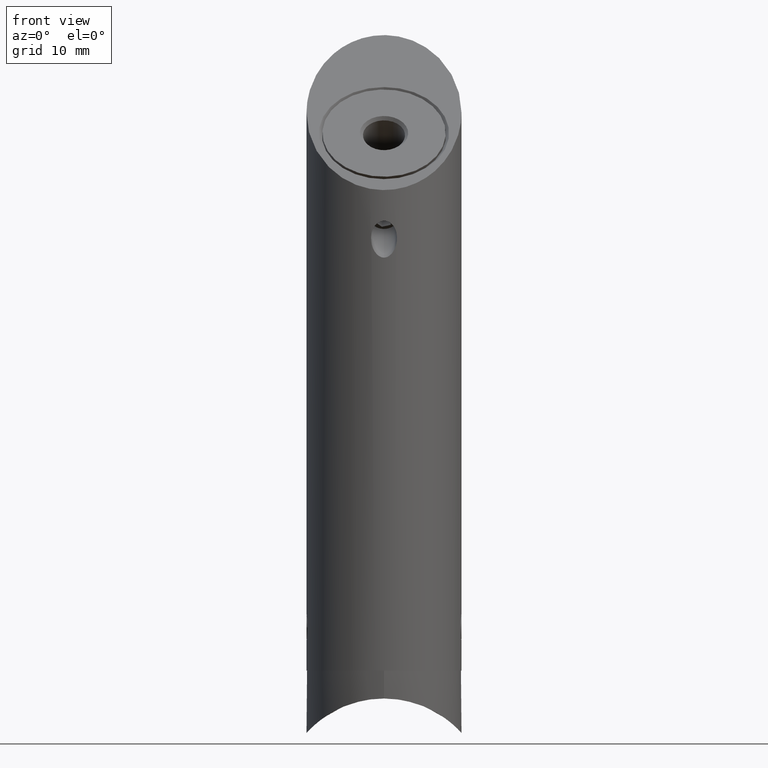
[diagram: clean part render]
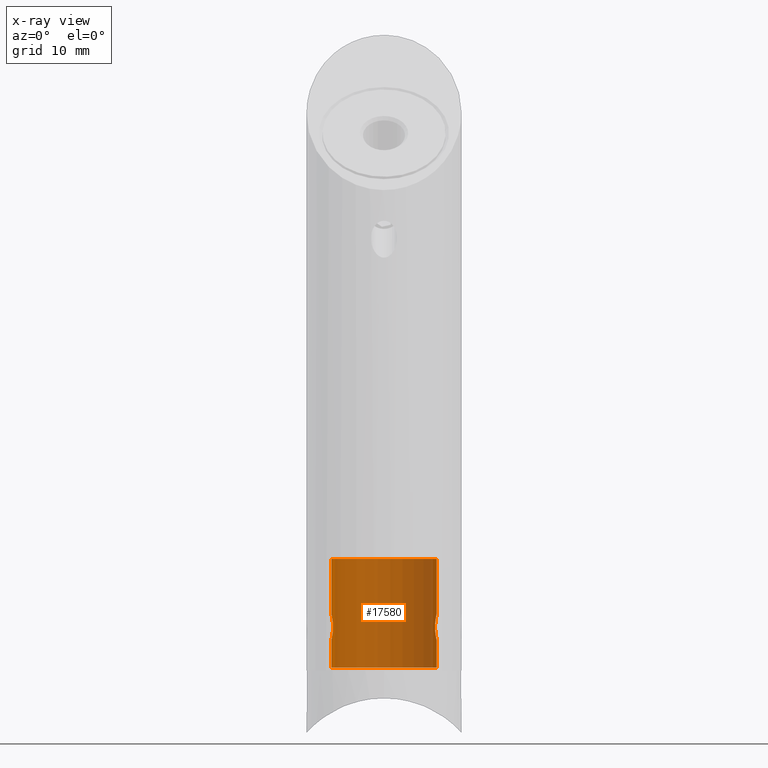
[diagram: x-ray — body ghosted, one internal face saturated and labeled with its STEP entity id]
A machine part, front view, then the same camera in x-ray: the body is ghosted and one INTERNAL B-rep face — a face not visible from any outside direction — is saturated and labeled: STEP entity #17580.
In plain terms, the highlighted cylindrical surface (partial cylindrical patch) has radius 8.5 mm, axis along (-0, -0, -1).
Its self-contained STEP definition (entity closure, byte-faithful):
#156 = CARTESIAN_POINT ( 'NONE',  ( 8.240041956358668400, 2.086259780683787000, 7.276479575319447300 ) ) ;
#565 = VECTOR ( 'NONE', #11245, 1000.000000000000000 ) ;
#809 = CARTESIAN_POINT ( 'NONE',  ( -8.500000000000000000, -1.837029856319032800E-021, 4.900000000000008300 ) ) ;
#1283 = CARTESIAN_POINT ( 'NONE',  ( 8.403572838986606900, 1.281834101084672600, 8.669001185913233000 ) ) ;
#2109 = CARTESIAN_POINT ( 'NONE',  ( -8.499999999999998200, 0.1393330656175417500, 9.099999999999992500 ) ) ;
#2218 = CARTESIAN_POINT ( 'NONE',  ( -8.449583987284246000, 0.9331761633784658700, 8.886295995850353800 ) ) ;
#2278 = CARTESIAN_POINT ( 'NONE',  ( -8.263519282018927800, 1.991770577951817300, 7.679364520728538100 ) ) ;
#2698 = ORIENTED_EDGE ( 'NONE', *, *, #16236, .T. ) ;
#3457 = ORIENTED_EDGE ( 'NONE', *, *, #9708, .T. ) ;
#3474 = CARTESIAN_POINT ( 'NONE',  ( -8.300385196950253800, 1.834450713489369100, 8.058080965075625100 ) ) ;
#3595 = CARTESIAN_POINT ( 'NONE',  ( -8.449736745580985100, 0.9317543119544197100, 5.113025193495184700 ) ) ;
#3656 = CARTESIAN_POINT ( 'NONE',  ( -8.435078417592752200, 1.054792497090245600, 5.178990277520340700 ) ) ;
#3669 = B_SPLINE_CURVE_WITH_KNOTS ( 'NONE', 3,
 ( #16963, #2109, #17092, #11638, #13157, #2218, #11693, #4880, #10453, #13221, #3474, #2278, #7562, #17274, #11806, #12979, #8921, #4818, #5002, #11748, #14389, #6252, #10397, #3656, #3595, #6310, #14505, #14274, #6193, #809 ),
 .UNSPECIFIED., .F., .F.,
 ( 4, 2, 2, 2, 2, 2, 2, 2, 2, 2, 2, 2, 2, 2, 4 ),
 ( 0.0000000000000000000, 0.0004119475621499937300, 0.0008238951242999874600, 0.001235842686449981100, 0.001647790248599974900, 0.002471685372899964800, 0.002883632935049958600, 0.003295580497199952400, 0.003707528059349946300, 0.004119475621499939200, 0.004943370745799927800, 0.005355318307949921200, 0.005767265870099914600, 0.006179213432249908000, 0.006591160994399902300 ),
 .UNSPECIFIED. ) ;
#3911 = DIRECTION ( 'NONE',  ( -0.0000000000000000000, -0.0000000000000000000, -1.000000000000000000 ) ) ;
#4009 = CYLINDRICAL_SURFACE ( 'NONE', #6789, 8.500000000000000000 ) ;
#4015 = CARTESIAN_POINT ( 'NONE',  ( 8.403631641869427700, 1.281486634270026600, 5.330693633718578200 ) ) ;
#4062 = CARTESIAN_POINT ( 'NONE',  ( 8.473790969397686700, 0.6790831444103765400, 5.008072185334882000 ) ) ;
#4120 = CARTESIAN_POINT ( 'NONE',  ( 8.496570775042242100, 0.2767940339338717000, 9.086241596614694800 ) ) ;
#4369 = VERTEX_POINT ( 'NONE', #13962 ) ;
#4818 = CARTESIAN_POINT ( 'NONE',  ( -8.253499000408766100, 2.032369446065715100, 6.453744324728682500 ) ) ;
#4880 = CARTESIAN_POINT ( 'NONE',  ( -8.403631641869427700, 1.281486634270026000, 8.669306366281423600 ) ) ;
#4949 = B_SPLINE_CURVE_WITH_KNOTS ( 'NONE', 3,
 ( #7931, #7986, #6733, #17645, #4062, #12174, #16191, #4015, #12282, #9396, #8042, #13630, #9564, #12118, #13690, #8153, #156, #8099, #14873, #14980, #10811, #9620, #1283, #16353, #13516, #5547, #8209, #4120, #10702, #5376 ),
 .UNSPECIFIED., .F., .F.,
 ( 4, 2, 2, 2, 2, 2, 2, 2, 2, 2, 2, 2, 2, 2, 4 ),
 ( 0.0000000000000000000, 0.0004119475621499946500, 0.0008238951242999893000, 0.001235842686449984100, 0.001647790248599978600, 0.002471685372899969500, 0.002883632935049963400, 0.003295580497199957200, 0.003707528059349951500, 0.004119475621499945300, 0.004943370745799933000, 0.005355318307949925500, 0.005767265870099918000, 0.006179213432249910600, 0.006591160994399903100 ),
 .UNSPECIFIED. ) ;
#5002 = CARTESIAN_POINT ( 'NONE',  ( -8.263341995424690700, 1.992518655463279900, 6.322567790190655400 ) ) ;
#5014 = CARTESIAN_POINT ( 'NONE',  ( 8.500000000000000000, 1.040949779275250100E-015, 18.00000000000000000 ) ) ;
#5247 = DIRECTION ( 'NONE',  ( -0.0000000000000000000, -0.0000000000000000000, -1.000000000000000000 ) ) ;
#5376 = CARTESIAN_POINT ( 'NONE',  ( 8.500000000000000000, 1.040947942237731000E-015, 9.099999999999992500 ) ) ;
#5547 = CARTESIAN_POINT ( 'NONE',  ( 8.473857099447313200, 0.6782057398855031400, 8.992204053960311000 ) ) ;
#5598 = CIRCLE ( 'NONE', #15610, 8.500000000000000000 ) ;
#5697 = ORIENTED_EDGE ( 'NONE', *, *, #14802, .F. ) ;
#5913 = DIRECTION ( 'NONE',  ( -1.000000000000000000, 0.0000000000000000000, 0.0000000000000000000 ) ) ;
#6193 = CARTESIAN_POINT ( 'NONE',  ( -8.500000000000001800, 0.1373717510630620700, 4.900000000000008300 ) ) ;
#6252 = CARTESIAN_POINT ( 'NONE',  ( -8.386606878835248600, 1.387297218133260300, 5.417489483887736800 ) ) ;
#6310 = CARTESIAN_POINT ( 'NONE',  ( -8.473857099447313200, 0.6782057398855024800, 5.007795946039690800 ) ) ;
#6524 = CARTESIAN_POINT ( 'NONE',  ( 8.500000000000000000, 1.040949779275250100E-015, 18.00000000000000000 ) ) ;
#6580 = CARTESIAN_POINT ( 'NONE',  ( -8.500000000000000000, 0.0000000000000000000, 0.5000000000000247600 ) ) ;
#6733 = CARTESIAN_POINT ( 'NONE',  ( 8.496578732000987300, 0.2762321638569488200, 4.913728576234910300 ) ) ;
#6789 = AXIS2_PLACEMENT_3D ( 'NONE', #13322, #7961, #9136 ) ;
#7289 = VECTOR ( 'NONE', #3911, 1000.000000000000000 ) ;
#7363 = EDGE_CURVE ( 'NONE', #4369, #16988, #8523, .T. ) ;
#7562 = CARTESIAN_POINT ( 'NONE',  ( -8.253497551418561800, 2.032376959208348500, 7.546428584836038000 ) ) ;
#7595 = VERTEX_POINT ( 'NONE', #8919 ) ;
#7760 = CARTESIAN_POINT ( 'NONE',  ( -8.500000000000000000, 0.0000000000000000000, 18.00000000000000000 ) ) ;
#7918 = LINE ( 'NONE', #11658, #12390 ) ;
#7931 = CARTESIAN_POINT ( 'NONE',  ( 8.500000000000000000, 0.0000000000000000000, 4.900000000000008300 ) ) ;
#7961 = DIRECTION ( 'NONE',  ( -0.0000000000000000000, -0.0000000000000000000, -1.000000000000000000 ) ) ;
#7986 = CARTESIAN_POINT ( 'NONE',  ( 8.500000000000001800, 0.1393330656175419100, 4.900000000000009200 ) ) ;
#8042 = CARTESIAN_POINT ( 'NONE',  ( 8.300385196950253800, 1.834450713489368800, 5.941919034924371300 ) ) ;
#8090 = CARTESIAN_POINT ( 'NONE',  ( -8.500000000000000000, -1.837029856319032800E-021, 4.900000000000008300 ) ) ;
#8099 = CARTESIAN_POINT ( 'NONE',  ( 8.253499000408767800, 2.032369446065716000, 7.546255675271315700 ) ) ;
#8153 = CARTESIAN_POINT ( 'NONE',  ( 8.236489519390671500, 2.100057237429267900, 7.136693656963869300 ) ) ;
#8209 = CARTESIAN_POINT ( 'NONE',  ( 8.483445392171788100, 0.5472514509460862900, 9.032125681670363400 ) ) ;
#8523 = LINE ( 'NONE', #5014, #11526 ) ;
#8562 = VERTEX_POINT ( 'NONE', #6580 ) ;
#8895 = FACE_OUTER_BOUND ( 'NONE', #9694, .T. ) ;
#8919 = CARTESIAN_POINT ( 'NONE',  ( 8.500000000000000000, 1.040949779275250100E-015, 18.00000000000000000 ) ) ;
#8921 = CARTESIAN_POINT ( 'NONE',  ( -8.240041956358670200, 2.086259780683787500, 6.723520424680552700 ) ) ;
#9136 = DIRECTION ( 'NONE',  ( -1.000000000000000000, 0.0000000000000000000, 0.0000000000000000000 ) ) ;
#9396 = CARTESIAN_POINT ( 'NONE',  ( 8.334981901263866200, 1.678225819861512100, 5.708493137165045400 ) ) ;
#9564 = CARTESIAN_POINT ( 'NONE',  ( 8.253497551418560000, 2.032376959208348000, 6.453571415163960300 ) ) ;
#9620 = CARTESIAN_POINT ( 'NONE',  ( 8.386606878835248600, 1.387297218133261500, 8.582510516112261500 ) ) ;
#9694 = EDGE_LOOP ( 'NONE', ( #16357, #5697, #10243, #12936, #2698, #3457, #15592, #12078 ) ) ;
#9708 = EDGE_CURVE ( 'NONE', #8562, #16988, #5598, .T. ) ;
#9854 = CARTESIAN_POINT ( 'NONE',  ( -8.500000000000000000, 0.0000000000000000000, 18.00000000000000000 ) ) ;
#9863 = EDGE_CURVE ( 'NONE', #9968, #12569, #7918, .T. ) ;
#9928 = CARTESIAN_POINT ( 'NONE',  ( 8.500000000000000000, 1.040949779275250100E-015, 0.5000000000000247600 ) ) ;
#9968 = VERTEX_POINT ( 'NONE', #7760 ) ;
#10243 = ORIENTED_EDGE ( 'NONE', *, *, #9863, .T. ) ;
#10343 = EDGE_CURVE ( 'NONE', #12569, #14139, #3669, .T. ) ;
#10397 = CARTESIAN_POINT ( 'NONE',  ( -8.403572838986605100, 1.281834101084671200, 5.330998814086767000 ) ) ;
#10453 = CARTESIAN_POINT ( 'NONE',  ( -8.386324222624240900, 1.388941083069197700, 8.580965096883051800 ) ) ;
#10702 = CARTESIAN_POINT ( 'NONE',  ( 8.500000000000001800, 0.1373717510630634900, 9.099999999999994300 ) ) ;
#10811 = CARTESIAN_POINT ( 'NONE',  ( 8.334818774999872600, 1.679246865168308800, 8.290682914587154800 ) ) ;
#11245 = DIRECTION ( 'NONE',  ( -0.0000000000000000000, -0.0000000000000000000, -1.000000000000000000 ) ) ;
#11351 = LINE ( 'NONE', #6524, #7289 ) ;
#11526 = VECTOR ( 'NONE', #5247, 1000.000000000000000 ) ;
#11568 = DIRECTION ( 'NONE',  ( 0.0000000000000000000, 0.0000000000000000000, -1.000000000000000000 ) ) ;
#11587 = AXIS2_PLACEMENT_3D ( 'NONE', #15569, #11568, #5913 ) ;
#11638 = CARTESIAN_POINT ( 'NONE',  ( -8.483554698900585200, 0.5453934618258577900, 9.032579305652179300 ) ) ;
#11658 = CARTESIAN_POINT ( 'NONE',  ( -8.500000000000000000, 0.0000000000000000000, 18.00000000000000000 ) ) ;
#11693 = CARTESIAN_POINT ( 'NONE',  ( -8.435233262503018600, 1.053599816440959000, 8.821735207190107200 ) ) ;
#11748 = CARTESIAN_POINT ( 'NONE',  ( -8.300533451494139600, 1.833834922641862700, 5.940174806147402000 ) ) ;
#11806 = CARTESIAN_POINT ( 'NONE',  ( -8.236518799466431100, 2.099942396721279800, 7.138446692938804200 ) ) ;
#11888 = CARTESIAN_POINT ( 'NONE',  ( 8.500000000000000000, 1.040947942237731000E-015, 9.099999999999992500 ) ) ;
#12062 = CARTESIAN_POINT ( 'NONE',  ( -8.500000000000000000, 0.0000000000000000000, 9.099999999999990800 ) ) ;
#12078 = ORIENTED_EDGE ( 'NONE', *, *, #12605, .T. ) ;
#12118 = CARTESIAN_POINT ( 'NONE',  ( 8.239982070903455000, 2.086497880847899100, 6.724923836248732900 ) ) ;
#12174 = CARTESIAN_POINT ( 'NONE',  ( 8.449583987284246000, 0.9331761633784674300, 5.113704004149645300 ) ) ;
#12282 = CARTESIAN_POINT ( 'NONE',  ( 8.386324222624244500, 1.388941083069197100, 5.419034903116946500 ) ) ;
#12390 = VECTOR ( 'NONE', #16985, 1000.000000000000000 ) ;
#12569 = VERTEX_POINT ( 'NONE', #12062 ) ;
#12605 = EDGE_CURVE ( 'NONE', #4369, #16004, #4949, .T. ) ;
#12936 = ORIENTED_EDGE ( 'NONE', *, *, #10343, .T. ) ;
#12979 = CARTESIAN_POINT ( 'NONE',  ( -8.236489519390673300, 2.100057237429267400, 6.863306343036128100 ) ) ;
#13157 = CARTESIAN_POINT ( 'NONE',  ( -8.473790969397686700, 0.6790831444103755400, 8.991927814665116300 ) ) ;
#13221 = CARTESIAN_POINT ( 'NONE',  ( -8.334981901263866200, 1.678225819861513200, 8.291506862834952000 ) ) ;
#13322 = CARTESIAN_POINT ( 'NONE',  ( 0.0000000000000000000, 0.0000000000000000000, 18.00000000000000000 ) ) ;
#13516 = CARTESIAN_POINT ( 'NONE',  ( 8.449736745580988600, 0.9317543119544214900, 8.886974806504817100 ) ) ;
#13630 = CARTESIAN_POINT ( 'NONE',  ( 8.263519282018929600, 1.991770577951816900, 6.320635479271462700 ) ) ;
#13690 = CARTESIAN_POINT ( 'NONE',  ( 8.236518799466431100, 2.099942396721279800, 6.861553307061195800 ) ) ;
#13962 = CARTESIAN_POINT ( 'NONE',  ( 8.500000000000000000, 0.0000000000000000000, 4.900000000000008300 ) ) ;
#14139 = VERTEX_POINT ( 'NONE', #8090 ) ;
#14274 = CARTESIAN_POINT ( 'NONE',  ( -8.496570775042238600, 0.2767940339338708600, 4.913758403385304300 ) ) ;
#14389 = CARTESIAN_POINT ( 'NONE',  ( -8.334818774999872600, 1.679246865168308300, 5.709317085412845200 ) ) ;
#14505 = CARTESIAN_POINT ( 'NONE',  ( -8.483445392171786300, 0.5472514509460847400, 4.967874318329639200 ) ) ;
#14731 = EDGE_CURVE ( 'NONE', #7595, #16004, #11351, .T. ) ;
#14802 = EDGE_CURVE ( 'NONE', #9968, #7595, #16346, .T. ) ;
#14873 = CARTESIAN_POINT ( 'NONE',  ( 8.263341995424690700, 1.992518655463280300, 7.677432209809341900 ) ) ;
#14980 = CARTESIAN_POINT ( 'NONE',  ( 8.300533451494141300, 1.833834922641863500, 8.059825193852599800 ) ) ;
#14981 = LINE ( 'NONE', #9854, #565 ) ;
#15569 = CARTESIAN_POINT ( 'NONE',  ( 0.0000000000000000000, 0.0000000000000000000, 18.00000000000000000 ) ) ;
#15592 = ORIENTED_EDGE ( 'NONE', *, *, #7363, .F. ) ;
#15610 = AXIS2_PLACEMENT_3D ( 'NONE', #16109, #15873, #17391 ) ;
#15873 = DIRECTION ( 'NONE',  ( 0.0000000000000000000, 0.0000000000000000000, -1.000000000000000000 ) ) ;
#16004 = VERTEX_POINT ( 'NONE', #11888 ) ;
#16109 = CARTESIAN_POINT ( 'NONE',  ( 0.0000000000000000000, 0.0000000000000000000, 0.5000000000000247600 ) ) ;
#16191 = CARTESIAN_POINT ( 'NONE',  ( 8.435233262503020400, 1.053599816440959000, 5.178264792809891900 ) ) ;
#16236 = EDGE_CURVE ( 'NONE', #14139, #8562, #14981, .T. ) ;
#16346 = CIRCLE ( 'NONE', #11587, 8.500000000000000000 ) ;
#16353 = CARTESIAN_POINT ( 'NONE',  ( 8.435078417592752200, 1.054792497090246000, 8.821009722479660200 ) ) ;
#16357 = ORIENTED_EDGE ( 'NONE', *, *, #14731, .F. ) ;
#16963 = CARTESIAN_POINT ( 'NONE',  ( -8.500000000000000000, 0.0000000000000000000, 9.099999999999990800 ) ) ;
#16985 = DIRECTION ( 'NONE',  ( -0.0000000000000000000, -0.0000000000000000000, -1.000000000000000000 ) ) ;
#16988 = VERTEX_POINT ( 'NONE', #9928 ) ;
#17092 = CARTESIAN_POINT ( 'NONE',  ( -8.496578732000989100, 0.2762321638569490400, 9.086271423765088800 ) ) ;
#17274 = CARTESIAN_POINT ( 'NONE',  ( -8.239982070903456800, 2.086497880847898700, 7.275076163751264400 ) ) ;
#17391 = DIRECTION ( 'NONE',  ( 1.000000000000000000, 0.0000000000000000000, 0.0000000000000000000 ) ) ;
#17580 = ADVANCED_FACE ( 'NONE', ( #8895 ), #4009, .F. ) ;
#17645 = CARTESIAN_POINT ( 'NONE',  ( 8.483554698900588800, 0.5453934618258579100, 4.967420694347817200 ) ) ;